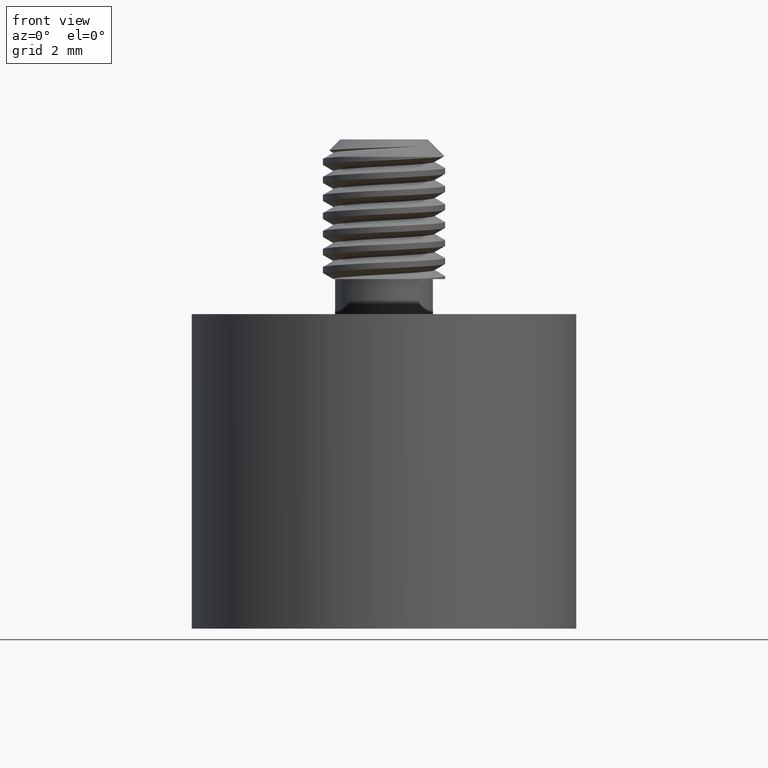
[diagram: clean part render]
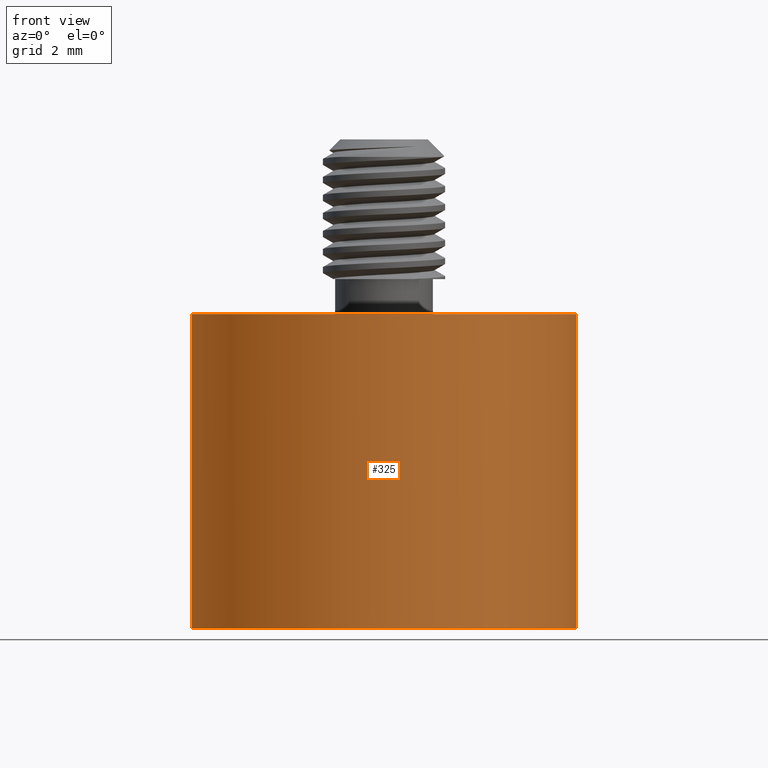
[diagram: same view with one face highlighted and labeled with its STEP entity id]
A machine part, front view. The second image highlights one B-rep face of the part: STEP entity #325.
In plain terms, the highlighted cylindrical surface (partial cylindrical patch) has radius 5.5 mm, axis along (0, 0, -1).
Its self-contained STEP definition (entity closure, byte-faithful):
#290 = VERTEX_POINT ( 'NONE', #1937 ) ;
#291 = VERTEX_POINT ( 'NONE', #1936 ) ;
#293 = EDGE_CURVE ( 'NONE', #290, #294, #1935, .T. ) ;
#294 = VERTEX_POINT ( 'NONE', #1931 ) ;
#297 = VERTEX_POINT ( 'NONE', #1925 ) ;
#323 = EDGE_CURVE ( 'NONE', #297, #294, #2023, .T. ) ;
#325 = ADVANCED_FACE ( 'NONE', ( #2018 ), #2055, .T. ) ;
#326 = EDGE_LOOP ( 'NONE', ( #327, #328, #330, #331 ) ) ;
#327 = ORIENTED_EDGE ( 'NONE', *, *, #293, .F. ) ;
#328 = ORIENTED_EDGE ( 'NONE', *, *, #329, .F. ) ;
#329 = EDGE_CURVE ( 'NONE', #291, #290, #2050, .T. ) ;
#330 = ORIENTED_EDGE ( 'NONE', *, *, #347, .T. ) ;
#331 = ORIENTED_EDGE ( 'NONE', *, *, #323, .T. ) ;
#347 = EDGE_CURVE ( 'NONE', #291, #297, #2164, .T. ) ;
#1925 = CARTESIAN_POINT ( 'NONE',  ( -0.1804339482034236800, 0.1494433794018338600, -0.1205798879059544500 ) ) ;
#1931 = CARTESIAN_POINT ( 'NONE',  ( 0.2526369179383086100, 0.1494433794018338900, -0.1205798879059544500 ) ) ;
#1932 = DIRECTION ( 'NONE',  ( 0.0000000000000000000, 0.0000000000000000000, -1.000000000000000000 ) ) ;
#1933 = VECTOR ( 'NONE', #1932, 39.37007874015748100 ) ;
#1934 = CARTESIAN_POINT ( 'NONE',  ( 0.2526369179383086100, 0.1494433794018338900, 0.2337508207554628600 ) ) ;
#1935 = LINE ( 'NONE', #1934, #1933 ) ;
#1936 = CARTESIAN_POINT ( 'NONE',  ( -0.1804339482034236800, 0.1494433794018338600, 0.2337508207554628600 ) ) ;
#1937 = CARTESIAN_POINT ( 'NONE',  ( 0.2526369179383086100, 0.1494433794018338900, 0.2337508207554628600 ) ) ;
#2018 = FACE_OUTER_BOUND ( 'NONE', #326, .T. ) ;
#2019 = DIRECTION ( 'NONE',  ( 1.000000000000000000, 0.0000000000000000000, 0.0000000000000000000 ) ) ;
#2020 = DIRECTION ( 'NONE',  ( 0.0000000000000000000, 0.0000000000000000000, 1.000000000000000000 ) ) ;
#2021 = CARTESIAN_POINT ( 'NONE',  ( 0.03610148486744245400, 0.1494433794018338600, -0.1205798879059544500 ) ) ;
#2022 = AXIS2_PLACEMENT_3D ( 'NONE', #2021, #2020, #2019 ) ;
#2023 = CIRCLE ( 'NONE', #2022, 0.2165354330708661500 ) ;
#2047 = DIRECTION ( 'NONE',  ( 1.000000000000000000, 0.0000000000000000000, 0.0000000000000000000 ) ) ;
#2048 = DIRECTION ( 'NONE',  ( 0.0000000000000000000, 0.0000000000000000000, 1.000000000000000000 ) ) ;
#2049 = AXIS2_PLACEMENT_3D ( 'NONE', #2056, #2048, #2047 ) ;
#2050 = CIRCLE ( 'NONE', #2049, 0.2165354330708661500 ) ;
#2052 = DIRECTION ( 'NONE',  ( -1.000000000000000000, 0.0000000000000000000, 0.0000000000000000000 ) ) ;
#2053 = DIRECTION ( 'NONE',  ( 0.0000000000000000000, 0.0000000000000000000, -1.000000000000000000 ) ) ;
#2054 = AXIS2_PLACEMENT_3D ( 'NONE', #2057, #2053, #2052 ) ;
#2055 = CYLINDRICAL_SURFACE ( 'NONE', #2054, 0.2165354330708661500 ) ;
#2056 = CARTESIAN_POINT ( 'NONE',  ( 0.03610148486744245400, 0.1494433794018338600, 0.2337508207554628600 ) ) ;
#2057 = CARTESIAN_POINT ( 'NONE',  ( 0.03610148486744245400, 0.1494433794018338600, 0.2337508207554628600 ) ) ;
#2161 = DIRECTION ( 'NONE',  ( 0.0000000000000000000, 0.0000000000000000000, -1.000000000000000000 ) ) ;
#2162 = VECTOR ( 'NONE', #2161, 39.37007874015748100 ) ;
#2163 = CARTESIAN_POINT ( 'NONE',  ( -0.1804339482034236800, 0.1494433794018338600, 0.2337508207554628600 ) ) ;
#2164 = LINE ( 'NONE', #2163, #2162 ) ;